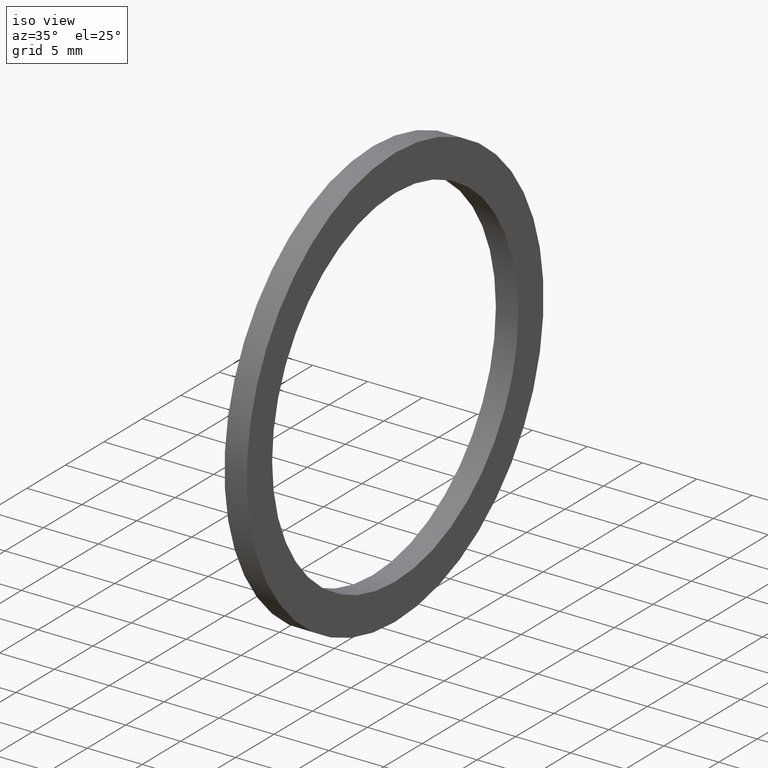
[diagram: clean part render]
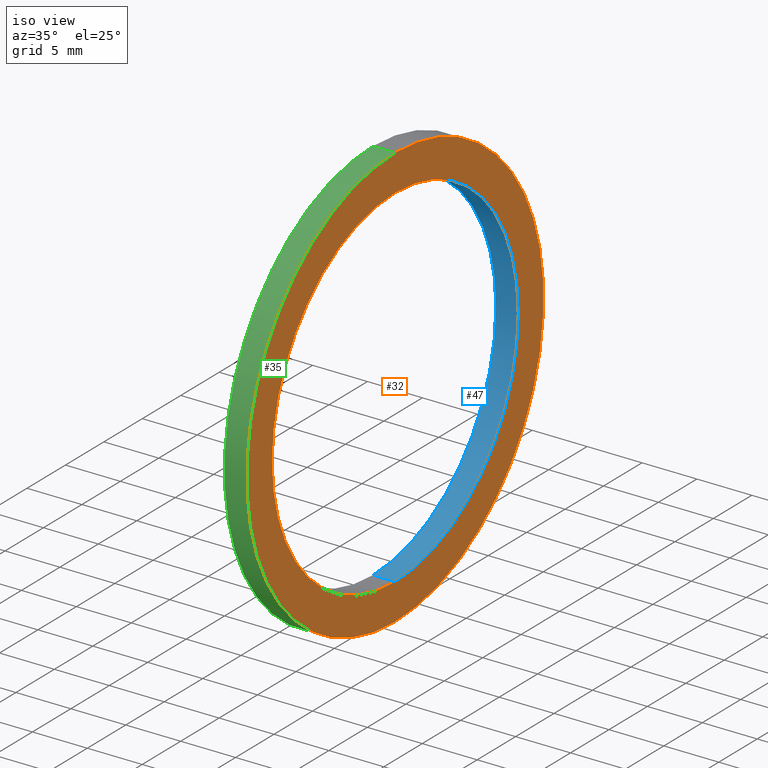
[diagram: same view with three faces highlighted in distinct colors, each labeled with its STEP entity id]
A machine part, iso view with three faces highlighted in distinct colors.
Their STEP definitions:

[orange] entity #32 — the highlighted planar face has unit normal (1, 0, 0).
#10 = EDGE_CURVE ( 'NONE', #140, #28, #58, .T. ) ;
#11 = VERTEX_POINT ( 'NONE', #59 ) ;
#12 = ORIENTED_EDGE ( 'NONE', *, *, #22, .F. ) ;
#13 = ORIENTED_EDGE ( 'NONE', *, *, #39, .F. ) ;
#22 = EDGE_CURVE ( 'NONE', #23, #11, #65, .T. ) ;
#23 = VERTEX_POINT ( 'NONE', #66 ) ;
#28 = VERTEX_POINT ( 'NONE', #93 ) ;
#32 = ADVANCED_FACE ( 'NONE', ( #117, #150 ), #148, .T. ) ;
#39 = EDGE_CURVE ( 'NONE', #11, #23, #159, .T. ) ;
#42 = EDGE_LOOP ( 'NONE', ( #44, #45 ) ) ;
#43 = EDGE_CURVE ( 'NONE', #28, #140, #55, .T. ) ;
#44 = ORIENTED_EDGE ( 'NONE', *, *, #43, .T. ) ;
#45 = ORIENTED_EDGE ( 'NONE', *, *, #10, .T. ) ;
#46 = EDGE_LOOP ( 'NONE', ( #12, #13 ) ) ;
#52 = DIRECTION ( 'NONE',  ( 0.0000000000000000000, 0.0000000000000000000, 1.000000000000000000 ) ) ;
#53 = DIRECTION ( 'NONE',  ( -1.000000000000000000, 0.0000000000000000000, 0.0000000000000000000 ) ) ;
#54 = AXIS2_PLACEMENT_3D ( 'NONE', #154, #53, #52 ) ;
#55 = CIRCLE ( 'NONE', #54, 0.6300000000000000000 ) ;
#58 = CIRCLE ( 'NONE', #144, 0.6300000000000000000 ) ;
#59 = CARTESIAN_POINT ( 'NONE',  ( 0.07999999999999996000, 9.307315673519883500E-017, -0.7599999999999999000 ) ) ;
#61 = DIRECTION ( 'NONE',  ( 0.0000000000000000000, 0.0000000000000000000, 1.000000000000000000 ) ) ;
#62 = DIRECTION ( 'NONE',  ( -1.000000000000000000, 0.0000000000000000000, 0.0000000000000000000 ) ) ;
#63 = CARTESIAN_POINT ( 'NONE',  ( 0.07999999999999996000, 0.0000000000000000000, 0.0000000000000000000 ) ) ;
#64 = AXIS2_PLACEMENT_3D ( 'NONE', #63, #62, #61 ) ;
#65 = CIRCLE ( 'NONE', #64, 0.7599999999999999000 ) ;
#66 = CARTESIAN_POINT ( 'NONE',  ( 0.07999999999999996000, 0.0000000000000000000, 0.7599999999999999000 ) ) ;
#93 = CARTESIAN_POINT ( 'NONE',  ( 0.07999999999999996000, 0.0000000000000000000, 0.6300000000000000000 ) ) ;
#111 = CARTESIAN_POINT ( 'NONE',  ( 0.07999999999999996000, 7.715274834628325400E-017, -0.6300000000000000000 ) ) ;
#117 = FACE_BOUND ( 'NONE', #42, .T. ) ;
#140 = VERTEX_POINT ( 'NONE', #111 ) ;
#141 = DIRECTION ( 'NONE',  ( 0.0000000000000000000, 0.0000000000000000000, 1.000000000000000000 ) ) ;
#142 = DIRECTION ( 'NONE',  ( -1.000000000000000000, 0.0000000000000000000, 0.0000000000000000000 ) ) ;
#143 = CARTESIAN_POINT ( 'NONE',  ( 0.07999999999999996000, 0.0000000000000000000, 0.0000000000000000000 ) ) ;
#144 = AXIS2_PLACEMENT_3D ( 'NONE', #143, #142, #141 ) ;
#147 = AXIS2_PLACEMENT_3D ( 'NONE', #175, #174, #173 ) ;
#148 = PLANE ( 'NONE',  #147 ) ;
#150 = FACE_OUTER_BOUND ( 'NONE', #46, .T. ) ;
#154 = CARTESIAN_POINT ( 'NONE',  ( 0.07999999999999996000, 0.0000000000000000000, 0.0000000000000000000 ) ) ;
#155 = DIRECTION ( 'NONE',  ( 0.0000000000000000000, 0.0000000000000000000, 1.000000000000000000 ) ) ;
#156 = DIRECTION ( 'NONE',  ( -1.000000000000000000, 0.0000000000000000000, 0.0000000000000000000 ) ) ;
#157 = CARTESIAN_POINT ( 'NONE',  ( 0.07999999999999996000, 0.0000000000000000000, 0.0000000000000000000 ) ) ;
#158 = AXIS2_PLACEMENT_3D ( 'NONE', #157, #156, #155 ) ;
#159 = CIRCLE ( 'NONE', #158, 0.7599999999999999000 ) ;
#173 = DIRECTION ( 'NONE',  ( 0.0000000000000000000, 0.0000000000000000000, -1.000000000000000000 ) ) ;
#174 = DIRECTION ( 'NONE',  ( 1.000000000000000000, 0.0000000000000000000, 0.0000000000000000000 ) ) ;
#175 = CARTESIAN_POINT ( 'NONE',  ( 0.08000000000000002900, -0.6300000000000000000, 0.0000000000000000000 ) ) ;

[blue] entity #47 — the highlighted cylindrical surface (partial cylindrical patch) has radius 16.002 mm, axis along (-1, 0, 0).
#1 = EDGE_CURVE ( 'NONE', #28, #21, #50, .T. ) ;
#7 = VERTEX_POINT ( 'NONE', #129 ) ;
#15 = EDGE_CURVE ( 'NONE', #21, #7, #82, .T. ) ;
#21 = VERTEX_POINT ( 'NONE', #86 ) ;
#28 = VERTEX_POINT ( 'NONE', #93 ) ;
#29 = EDGE_CURVE ( 'NONE', #140, #7, #121, .T. ) ;
#43 = EDGE_CURVE ( 'NONE', #28, #140, #55, .T. ) ;
#47 = ADVANCED_FACE ( 'NONE', ( #56 ), #138, .F. ) ;
#48 = EDGE_LOOP ( 'NONE', ( #77, #177, #176, #139 ) ) ;
#50 = LINE ( 'NONE', #115, #153 ) ;
#51 = CARTESIAN_POINT ( 'NONE',  ( -1.721125226614714300, 0.0000000000000000000, 0.0000000000000000000 ) ) ;
#52 = DIRECTION ( 'NONE',  ( 0.0000000000000000000, 0.0000000000000000000, 1.000000000000000000 ) ) ;
#53 = DIRECTION ( 'NONE',  ( -1.000000000000000000, 0.0000000000000000000, 0.0000000000000000000 ) ) ;
#54 = AXIS2_PLACEMENT_3D ( 'NONE', #154, #53, #52 ) ;
#55 = CIRCLE ( 'NONE', #54, 0.6300000000000000000 ) ;
#56 = FACE_OUTER_BOUND ( 'NONE', #48, .T. ) ;
#74 = CARTESIAN_POINT ( 'NONE',  ( 0.0000000000000000000, 0.0000000000000000000, 0.0000000000000000000 ) ) ;
#77 = ORIENTED_EDGE ( 'NONE', *, *, #29, .F. ) ;
#79 = DIRECTION ( 'NONE',  ( 0.0000000000000000000, 0.0000000000000000000, 1.000000000000000000 ) ) ;
#80 = DIRECTION ( 'NONE',  ( -1.000000000000000000, 0.0000000000000000000, 0.0000000000000000000 ) ) ;
#81 = AXIS2_PLACEMENT_3D ( 'NONE', #74, #80, #79 ) ;
#82 = CIRCLE ( 'NONE', #81, 0.6300000000000000000 ) ;
#86 = CARTESIAN_POINT ( 'NONE',  ( 0.0000000000000000000, 0.0000000000000000000, 0.6300000000000000000 ) ) ;
#93 = CARTESIAN_POINT ( 'NONE',  ( 0.07999999999999996000, 0.0000000000000000000, 0.6300000000000000000 ) ) ;
#111 = CARTESIAN_POINT ( 'NONE',  ( 0.07999999999999996000, 7.715274834628325400E-017, -0.6300000000000000000 ) ) ;
#114 = DIRECTION ( 'NONE',  ( -1.000000000000000000, 0.0000000000000000000, 0.0000000000000000000 ) ) ;
#115 = CARTESIAN_POINT ( 'NONE',  ( -1.721125226614714300, 0.0000000000000000000, 0.6300000000000000000 ) ) ;
#118 = DIRECTION ( 'NONE',  ( -1.000000000000000000, 0.0000000000000000000, 0.0000000000000000000 ) ) ;
#119 = VECTOR ( 'NONE', #118, 39.37007874015748100 ) ;
#120 = CARTESIAN_POINT ( 'NONE',  ( -1.721125226614714300, 7.715274834628325400E-017, -0.6300000000000000000 ) ) ;
#121 = LINE ( 'NONE', #120, #119 ) ;
#129 = CARTESIAN_POINT ( 'NONE',  ( 0.0000000000000000000, 7.715274834628325400E-017, -0.6300000000000000000 ) ) ;
#135 = DIRECTION ( 'NONE',  ( 0.0000000000000000000, 0.0000000000000000000, 1.000000000000000000 ) ) ;
#136 = DIRECTION ( 'NONE',  ( -1.000000000000000000, 0.0000000000000000000, 0.0000000000000000000 ) ) ;
#137 = AXIS2_PLACEMENT_3D ( 'NONE', #51, #136, #135 ) ;
#138 = CYLINDRICAL_SURFACE ( 'NONE', #137, 0.6300000000000000000 ) ;
#139 = ORIENTED_EDGE ( 'NONE', *, *, #15, .T. ) ;
#140 = VERTEX_POINT ( 'NONE', #111 ) ;
#153 = VECTOR ( 'NONE', #114, 39.37007874015748100 ) ;
#154 = CARTESIAN_POINT ( 'NONE',  ( 0.07999999999999996000, 0.0000000000000000000, 0.0000000000000000000 ) ) ;
#176 = ORIENTED_EDGE ( 'NONE', *, *, #1, .T. ) ;
#177 = ORIENTED_EDGE ( 'NONE', *, *, #43, .F. ) ;

[green] entity #35 — the highlighted cylindrical surface (partial cylindrical patch) has radius 19.304 mm, axis along (-1, 0, 0).
#5 = EDGE_CURVE ( 'NONE', #8, #19, #178, .T. ) ;
#8 = VERTEX_POINT ( 'NONE', #128 ) ;
#11 = VERTEX_POINT ( 'NONE', #59 ) ;
#19 = VERTEX_POINT ( 'NONE', #127 ) ;
#23 = VERTEX_POINT ( 'NONE', #66 ) ;
#26 = EDGE_CURVE ( 'NONE', #11, #8, #85, .T. ) ;
#31 = ORIENTED_EDGE ( 'NONE', *, *, #5, .F. ) ;
#33 = EDGE_CURVE ( 'NONE', #23, #19, #149, .T. ) ;
#35 = ADVANCED_FACE ( 'NONE', ( #71 ), #163, .T. ) ;
#36 = EDGE_LOOP ( 'NONE', ( #37, #38, #40, #31 ) ) ;
#37 = ORIENTED_EDGE ( 'NONE', *, *, #26, .F. ) ;
#38 = ORIENTED_EDGE ( 'NONE', *, *, #39, .T. ) ;
#39 = EDGE_CURVE ( 'NONE', #11, #23, #159, .T. ) ;
#40 = ORIENTED_EDGE ( 'NONE', *, *, #33, .T. ) ;
#59 = CARTESIAN_POINT ( 'NONE',  ( 0.07999999999999996000, 9.307315673519883500E-017, -0.7599999999999999000 ) ) ;
#66 = CARTESIAN_POINT ( 'NONE',  ( 0.07999999999999996000, 0.0000000000000000000, 0.7599999999999999000 ) ) ;
#71 = FACE_OUTER_BOUND ( 'NONE', #36, .T. ) ;
#75 = AXIS2_PLACEMENT_3D ( 'NONE', #152, #88, #87 ) ;
#84 = CARTESIAN_POINT ( 'NONE',  ( -1.721125226614714300, 9.307315673519883500E-017, -0.7599999999999999000 ) ) ;
#85 = LINE ( 'NONE', #84, #95 ) ;
#87 = DIRECTION ( 'NONE',  ( 0.0000000000000000000, 0.0000000000000000000, 1.000000000000000000 ) ) ;
#88 = DIRECTION ( 'NONE',  ( -1.000000000000000000, 0.0000000000000000000, 0.0000000000000000000 ) ) ;
#94 = DIRECTION ( 'NONE',  ( -1.000000000000000000, 0.0000000000000000000, 0.0000000000000000000 ) ) ;
#95 = VECTOR ( 'NONE', #94, 39.37007874015748100 ) ;
#127 = CARTESIAN_POINT ( 'NONE',  ( 0.0000000000000000000, 0.0000000000000000000, 0.7599999999999999000 ) ) ;
#128 = CARTESIAN_POINT ( 'NONE',  ( 0.0000000000000000000, 9.307315673519883500E-017, -0.7599999999999999000 ) ) ;
#149 = LINE ( 'NONE', #172, #171 ) ;
#152 = CARTESIAN_POINT ( 'NONE',  ( 0.0000000000000000000, 0.0000000000000000000, 0.0000000000000000000 ) ) ;
#155 = DIRECTION ( 'NONE',  ( 0.0000000000000000000, 0.0000000000000000000, 1.000000000000000000 ) ) ;
#156 = DIRECTION ( 'NONE',  ( -1.000000000000000000, 0.0000000000000000000, 0.0000000000000000000 ) ) ;
#157 = CARTESIAN_POINT ( 'NONE',  ( 0.07999999999999996000, 0.0000000000000000000, 0.0000000000000000000 ) ) ;
#158 = AXIS2_PLACEMENT_3D ( 'NONE', #157, #156, #155 ) ;
#159 = CIRCLE ( 'NONE', #158, 0.7599999999999999000 ) ;
#160 = DIRECTION ( 'NONE',  ( 0.0000000000000000000, 0.0000000000000000000, 1.000000000000000000 ) ) ;
#161 = DIRECTION ( 'NONE',  ( -1.000000000000000000, 0.0000000000000000000, 0.0000000000000000000 ) ) ;
#162 = AXIS2_PLACEMENT_3D ( 'NONE', #164, #161, #160 ) ;
#163 = CYLINDRICAL_SURFACE ( 'NONE', #162, 0.7599999999999999000 ) ;
#164 = CARTESIAN_POINT ( 'NONE',  ( -1.721125226614714300, 0.0000000000000000000, 0.0000000000000000000 ) ) ;
#170 = DIRECTION ( 'NONE',  ( -1.000000000000000000, 0.0000000000000000000, 0.0000000000000000000 ) ) ;
#171 = VECTOR ( 'NONE', #170, 39.37007874015748100 ) ;
#172 = CARTESIAN_POINT ( 'NONE',  ( -1.721125226614714300, 0.0000000000000000000, 0.7599999999999999000 ) ) ;
#178 = CIRCLE ( 'NONE', #75, 0.7599999999999999000 ) ;